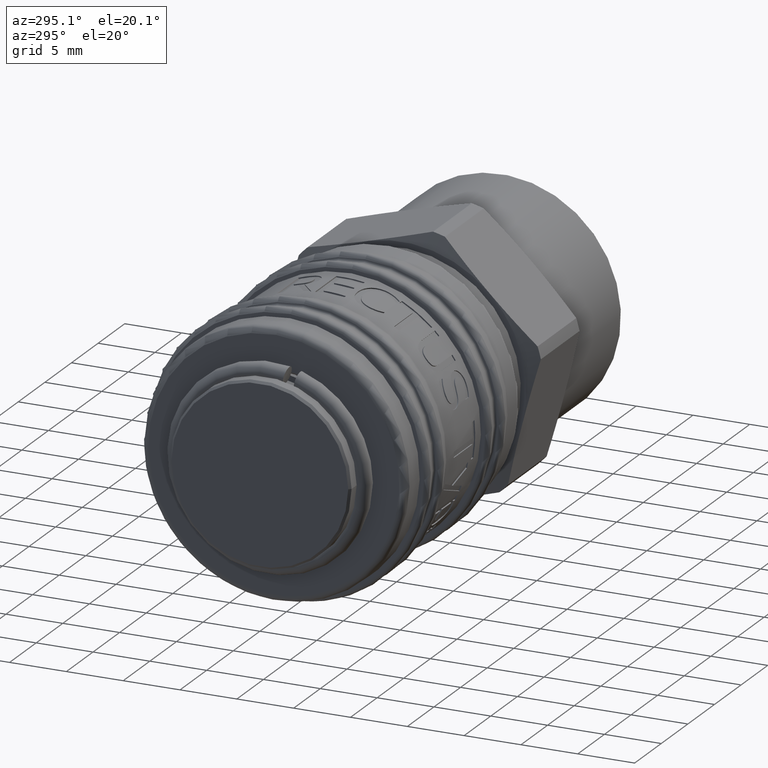
[diagram: clean part render]
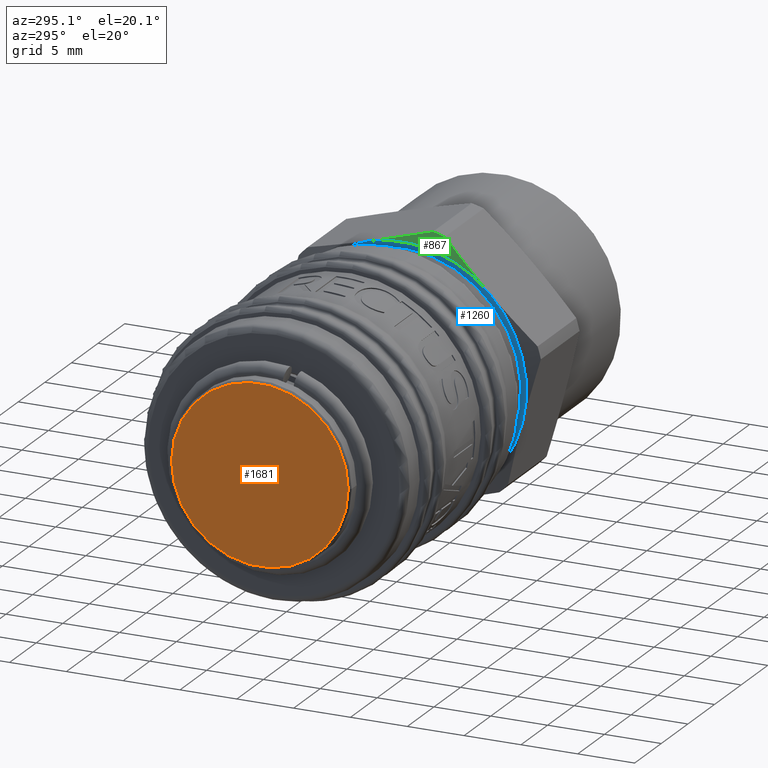
[diagram: same view with three faces highlighted in distinct colors, each labeled with its STEP entity id]
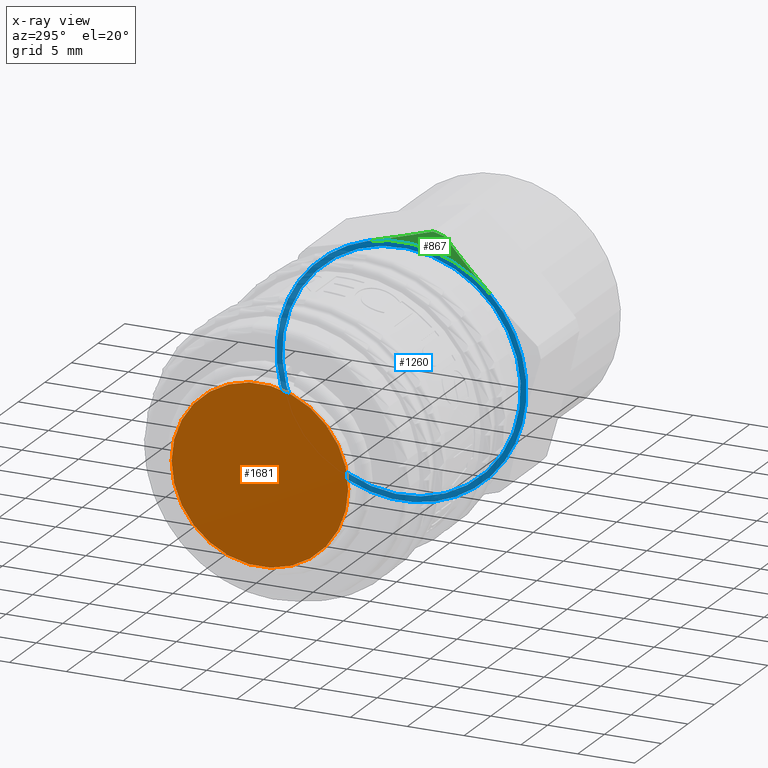
[diagram: x-ray of the same camera — body ghosted, the three highlighted faces saturated]
A machine part, auxiliary view with three faces highlighted in distinct colors.
The next image is the same camera in x-ray (body ghosted, the three faces saturated) — at least one of them is partly hidden behind the body in this view.
Their STEP definitions:

[orange] entity #1681 — the highlighted planar face has unit normal (-1, 0, 0).
#1661=CARTESIAN_POINT('',(1.249001E-015,-7.774999999999999,-9.521629E-016));
#1662=VERTEX_POINT('',#1661);
#1663=CARTESIAN_POINT('',(1.249001E-015,0.0,0.0));
#1664=DIRECTION('',(1.0,0.0,0.0));
#1665=DIRECTION('',(0.0,1.0,0.0));
#1666=AXIS2_PLACEMENT_3D('',#1663,#1664,#1665);
#1667=CIRCLE('',#1666,7.774999999999999);
#1668=EDGE_CURVE('',#1662,#1662,#1667,.T.);
#1673=CARTESIAN_POINT('',(1.249001E-015,-6.7875,0.0));
#1674=DIRECTION('',(-1.0,0.0,0.0));
#1675=DIRECTION('',(0.0,0.0,1.0));
#1676=AXIS2_PLACEMENT_3D('',#1673,#1674,#1675);
#1677=PLANE('',#1676);
#1678=ORIENTED_EDGE('',*,*,#1668,.F.);
#1679=EDGE_LOOP('',(#1678));
#1680=FACE_OUTER_BOUND('',#1679,.T.);
#1681=ADVANCED_FACE('',(#1680),#1677,.T.);

[blue] entity #1260 — the highlighted planar face has unit normal (-1, 0, 0).
#328=CARTESIAN_POINT('',(26.600000000000001,-7.72492057093717,7.831066477352357));
#329=VERTEX_POINT('',#328);
#412=CARTESIAN_POINT('',(26.600000000000001,-10.64436279358044,-2.774444217972396));
#413=VERTEX_POINT('',#412);
#496=CARTESIAN_POINT('',(26.600000000000001,-2.919442222643279,-10.605510695324757));
#497=VERTEX_POINT('',#496);
#580=CARTESIAN_POINT('',(26.600000000000001,7.724920570937167,-7.831066477352362));
#581=VERTEX_POINT('',#580);
#664=CARTESIAN_POINT('',(26.600000000000001,10.644362793580445,2.774444217972392));
#665=VERTEX_POINT('',#664);
#724=CARTESIAN_POINT('',(26.600000000000001,2.919442222643281,10.605510695324753));
#725=VERTEX_POINT('',#724);
#726=CARTESIAN_POINT('',(26.600000000000005,6.500519E-016,-3.451266E-030));
#727=DIRECTION('',(-1.0,3.021314E-017,-8.316951E-018));
#728=DIRECTION('',(3.133697E-017,0.964137335938614,-0.265403838422116));
#729=AXIS2_PLACEMENT_3D('',#726,#727,#728);
#730=CIRCLE('',#729,11.0);
#731=EDGE_CURVE('',#725,#665,#730,.T.);
#764=CARTESIAN_POINT('',(26.600000000000005,6.500519E-016,-3.451266E-030));
#765=DIRECTION('',(-1.0,3.021314E-017,-8.316951E-018));
#766=DIRECTION('',(3.133697E-017,0.964137335938614,-0.265403838422116));
#767=AXIS2_PLACEMENT_3D('',#764,#765,#766);
#768=CIRCLE('',#767,11.0);
#769=EDGE_CURVE('',#665,#581,#768,.T.);
#788=CARTESIAN_POINT('',(26.600000000000005,6.500519E-016,-3.451266E-030));
#789=DIRECTION('',(-1.0,3.021314E-017,-8.316951E-018));
#790=DIRECTION('',(3.133697E-017,0.964137335938614,-0.265403838422116));
#791=AXIS2_PLACEMENT_3D('',#788,#789,#790);
#792=CIRCLE('',#791,11.0);
#793=EDGE_CURVE('',#581,#497,#792,.T.);
#812=CARTESIAN_POINT('',(26.600000000000005,6.500519E-016,-3.451266E-030));
#813=DIRECTION('',(-1.0,3.021314E-017,-8.316951E-018));
#814=DIRECTION('',(3.133697E-017,0.964137335938614,-0.265403838422116));
#815=AXIS2_PLACEMENT_3D('',#812,#813,#814);
#816=CIRCLE('',#815,11.0);
#817=EDGE_CURVE('',#497,#413,#816,.T.);
#858=CARTESIAN_POINT('',(26.600000000000005,6.500519E-016,-3.451266E-030));
#859=DIRECTION('',(-1.0,3.021314E-017,-8.316951E-018));
#860=DIRECTION('',(3.133697E-017,0.964137335938614,-0.265403838422116));
#861=AXIS2_PLACEMENT_3D('',#858,#859,#860);
#862=CIRCLE('',#861,11.0);
#863=EDGE_CURVE('',#329,#725,#862,.T.);
#874=CARTESIAN_POINT('',(26.600000000000005,6.500519E-016,-3.451266E-030));
#875=DIRECTION('',(-1.0,3.021314E-017,-8.316951E-018));
#876=DIRECTION('',(3.133697E-017,0.964137335938614,-0.265403838422116));
#877=AXIS2_PLACEMENT_3D('',#874,#875,#876);
#878=CIRCLE('',#877,11.0);
#879=EDGE_CURVE('',#413,#329,#878,.T.);
#1236=CARTESIAN_POINT('',(26.600000000000005,10.364476361340099,-2.853091263037751));
#1237=DIRECTION('',(-1.0,0.0,0.0));
#1238=DIRECTION('',(0.0,0.265403838422116,0.964137335938614));
#1239=AXIS2_PLACEMENT_3D('',#1236,#1237,#1238);
#1240=PLANE('',#1239);
#1241=ORIENTED_EDGE('',*,*,#731,.T.);
#1242=ORIENTED_EDGE('',*,*,#769,.T.);
#1243=ORIENTED_EDGE('',*,*,#793,.T.);
#1244=ORIENTED_EDGE('',*,*,#817,.T.);
#1245=ORIENTED_EDGE('',*,*,#879,.T.);
#1246=ORIENTED_EDGE('',*,*,#863,.T.);
#1247=EDGE_LOOP('',(#1241,#1242,#1243,#1244,#1245,#1246));
#1248=FACE_OUTER_BOUND('',#1247,.T.);
#1249=CARTESIAN_POINT('',(26.600000000000005,10.123442027355443,-2.786740303432222));
#1250=VERTEX_POINT('',#1249);
#1251=CARTESIAN_POINT('',(26.600000000000005,6.500519E-016,-3.451266E-030));
#1252=DIRECTION('',(-1.0,3.021314E-017,-8.316951E-018));
#1253=DIRECTION('',(3.133697E-017,0.964137335938614,-0.265403838422116));
#1254=AXIS2_PLACEMENT_3D('',#1251,#1252,#1253);
#1255=CIRCLE('',#1254,10.499999999999998);
#1256=EDGE_CURVE('',#1250,#1250,#1255,.T.);
#1257=ORIENTED_EDGE('',*,*,#1256,.F.);
#1258=EDGE_LOOP('',(#1257));
#1259=FACE_BOUND('',#1258,.T.);
#1260=ADVANCED_FACE('',(#1248,#1259),#1240,.T.);

[green] entity #867 — the highlighted conical surface has half-angle 75 deg.
#320=CARTESIAN_POINT('',(26.975128869403584,-3.650178042765245,11.850578055779163));
#321=VERTEX_POINT('',#320);
#328=CARTESIAN_POINT('',(26.600000000000001,-7.72492057093717,7.831066477352357));
#329=VERTEX_POINT('',#328);
#330=CARTESIAN_POINT('',(26.600000000000009,-7.72492057093717,7.831066477352358));
#331=CARTESIAN_POINT('',(26.600000000000009,-5.809443314104272,9.720580467211056));
#332=CARTESIAN_POINT('',(26.975128869403584,-3.650178042765266,11.850578055779145));
#340=(BOUNDED_CURVE()B_SPLINE_CURVE(2,(#330,#331,#332),.UNSPECIFIED.,.F.,.U.)B_SPLINE_CURVE_WITH_KNOTS((3,3),(0.573870031976505,1.147740063953011),.UNSPECIFIED.)CURVE()GEOMETRIC_REPRESENTATION_ITEM()RATIONAL_B_SPLINE_CURVE((1.0,1.03132747642853,1.0))REPRESENTATION_ITEM(''));
#341=EDGE_CURVE('',#329,#321,#340,.T.);
#724=CARTESIAN_POINT('',(26.600000000000001,2.919442222643281,10.605510695324753));
#725=VERTEX_POINT('',#724);
#830=CARTESIAN_POINT('',(26.787564434701796,6.439556E-016,-3.418900E-030));
#831=DIRECTION('',(1.0,-3.250260E-017,1.725633E-031));
#832=DIRECTION('',(3.133697E-017,0.964137335938614,-0.265403838422116));
#833=AXIS2_PLACEMENT_3D('',#830,#831,#832);
#834=CONICAL_SURFACE('',#833,11.700000000000005,74.999999999999886);
#835=ORIENTED_EDGE('',*,*,#341,.T.);
#836=CARTESIAN_POINT('',(26.975128869403584,-2.598928179165979,12.12458544938907));
#837=VERTEX_POINT('',#836);
#838=CARTESIAN_POINT('',(26.975128869403584,6.378593E-016,-3.386533E-030));
#839=DIRECTION('',(-1.0,3.021314E-017,-8.316951E-018));
#840=DIRECTION('',(3.133697E-017,0.964137335938614,-0.265403838422116));
#841=AXIS2_PLACEMENT_3D('',#838,#839,#840);
#842=CIRCLE('',#841,12.400000000000004);
#843=EDGE_CURVE('',#321,#837,#842,.T.);
#844=ORIENTED_EDGE('',*,*,#843,.T.);
#845=CARTESIAN_POINT('',(26.975128869403584,-2.598928179165962,12.124585449389064));
#846=CARTESIAN_POINT('',(26.600000000000001,0.325336478203079,11.319605665184033));
#847=CARTESIAN_POINT('',(26.600000000000001,2.919442222643281,10.605510695324753));
#855=(BOUNDED_CURVE()B_SPLINE_CURVE(2,(#845,#846,#847),.UNSPECIFIED.,.F.,.U.)B_SPLINE_CURVE_WITH_KNOTS((3,3),(0.0,0.573870031976506),.UNSPECIFIED.)CURVE()GEOMETRIC_REPRESENTATION_ITEM()RATIONAL_B_SPLINE_CURVE((1.0,1.031327476428501,1.0))REPRESENTATION_ITEM(''));
#856=EDGE_CURVE('',#837,#725,#855,.T.);
#857=ORIENTED_EDGE('',*,*,#856,.T.);
#858=CARTESIAN_POINT('',(26.600000000000005,6.500519E-016,-3.451266E-030));
#859=DIRECTION('',(-1.0,3.021314E-017,-8.316951E-018));
#860=DIRECTION('',(3.133697E-017,0.964137335938614,-0.265403838422116));
#861=AXIS2_PLACEMENT_3D('',#858,#859,#860);
#862=CIRCLE('',#861,11.0);
#863=EDGE_CURVE('',#329,#725,#862,.T.);
#864=ORIENTED_EDGE('',*,*,#863,.F.);
#865=EDGE_LOOP('',(#835,#844,#857,#864));
#866=FACE_OUTER_BOUND('',#865,.T.);
#867=ADVANCED_FACE('',(#866),#834,.T.);